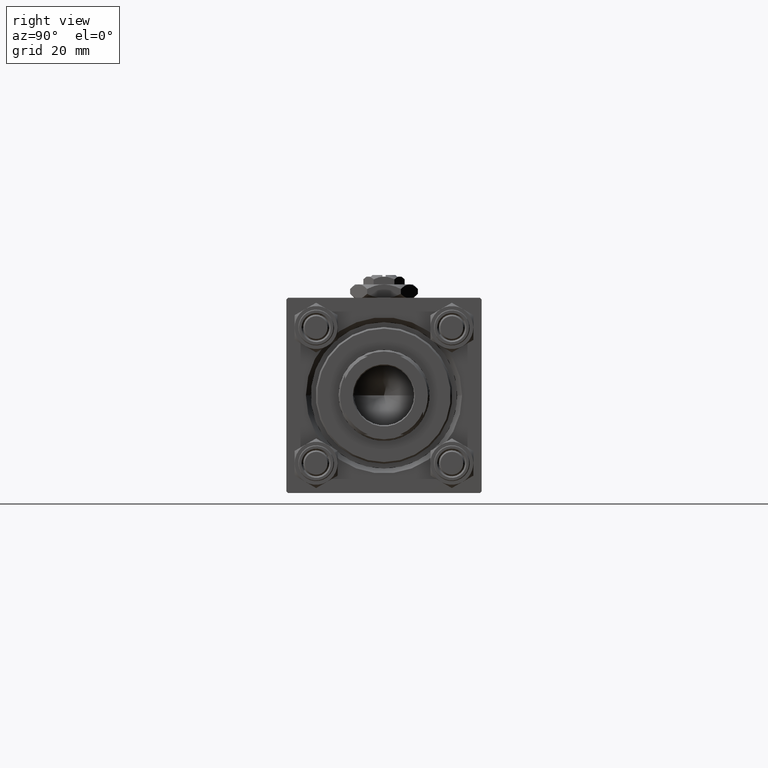
[diagram: clean part render]
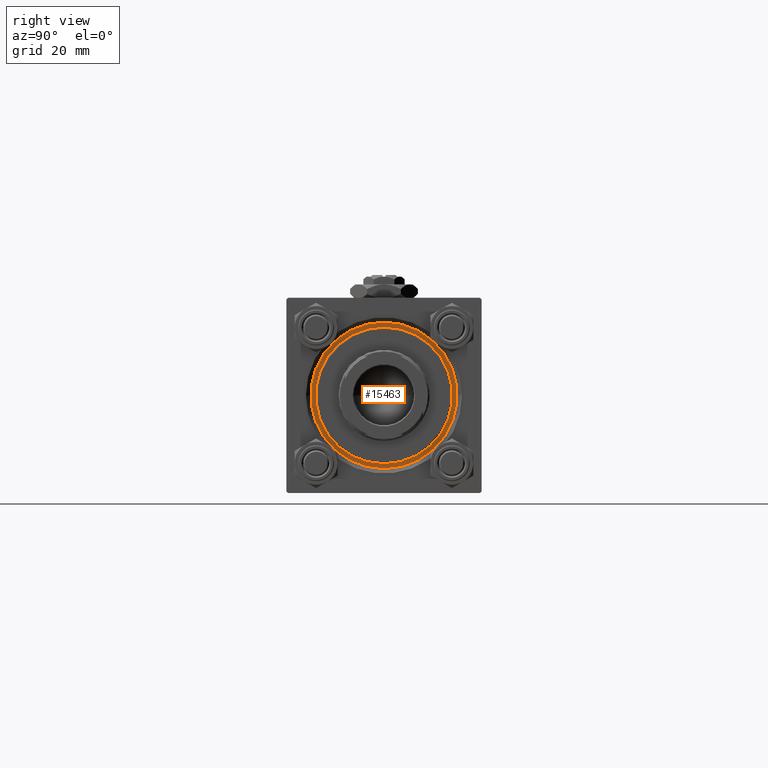
[diagram: same view with one face highlighted and labeled with its STEP entity id]
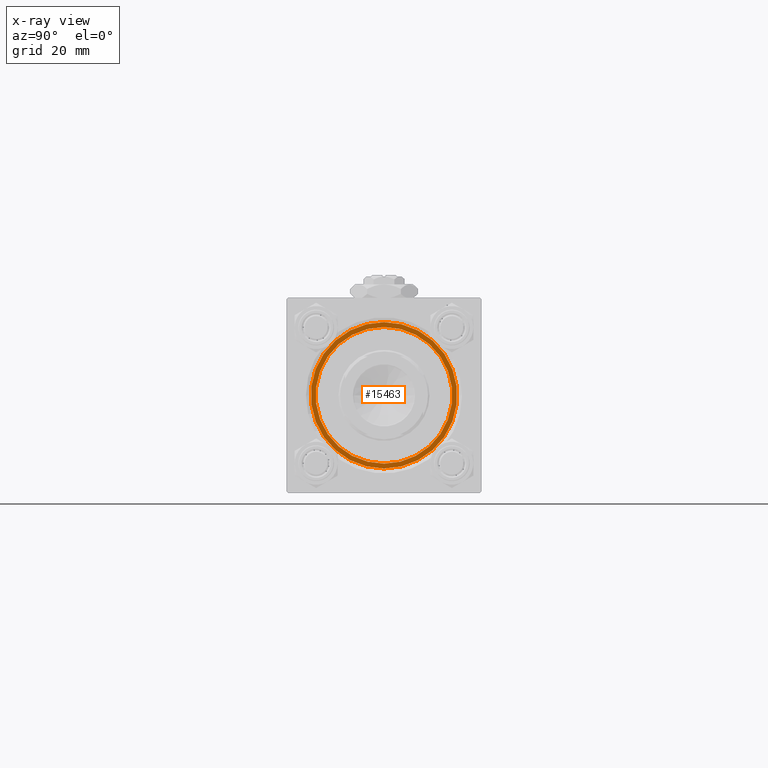
[diagram: x-ray of the same camera — body ghosted, the highlighted face saturated]
A machine part, right view. The second image highlights one B-rep face of the part: STEP entity #15463.
The next image is the same camera in x-ray: the body ghosted, the highlighted face saturated — about 0% of this face is hidden behind the body in this view.
In plain terms, the highlighted planar face has unit normal (1, 0, 0).
Its self-contained STEP definition (entity closure, byte-faithful):
#444 = FACE_BOUND ( 'NONE', #23525, .T. ) ;
#844 = CARTESIAN_POINT ( 'NONE',  ( 22.50000000000000355, 2.755455298081545172E-15, 28.69999999999999929 ) ) ;
#903 = FACE_OUTER_BOUND ( 'NONE', #15886, .T. ) ;
#1141 = CIRCLE ( 'NONE', #40472, 21.00000000000000000 ) ;
#2580 = DIRECTION ( 'NONE',  ( 1.000000000000000000, 0.000000000000000000, 0.000000000000000000 ) ) ;
#5070 = DIRECTION ( 'NONE',  ( 0.000000000000000000, 0.000000000000000000, 1.000000000000000000 ) ) ;
#7272 = ORIENTED_EDGE ( 'NONE', *, *, #7732, .T. ) ;
#7732 = EDGE_CURVE ( 'NONE', #21997, #15813, #41942, .T. ) ;
#9023 = DIRECTION ( 'NONE',  ( 1.000000000000000000, 0.000000000000000000, 0.000000000000000000 ) ) ;
#10539 = AXIS2_PLACEMENT_3D ( 'NONE', #16262, #40749, #9023 ) ;
#13462 = CARTESIAN_POINT ( 'NONE',  ( 0.000000000000000000, 0.000000000000000000, 28.69999999999999929 ) ) ;
#15463 = ADVANCED_FACE ( 'NONE', ( #444, #903 ), #41500, .T. ) ;
#15651 = DIRECTION ( 'NONE',  ( 1.000000000000000000, 0.000000000000000000, -0.000000000000000000 ) ) ;
#15813 = VERTEX_POINT ( 'NONE', #844 ) ;
#15886 = EDGE_LOOP ( 'NONE', ( #7272, #21592 ) ) ;
#15951 = DIRECTION ( 'NONE',  ( 1.000000000000000000, 0.000000000000000000, 0.000000000000000000 ) ) ;
#16262 = CARTESIAN_POINT ( 'NONE',  ( 0.000000000000000000, 0.000000000000000000, 28.69999999999999929 ) ) ;
#18779 = DIRECTION ( 'NONE',  ( 0.000000000000000000, 0.000000000000000000, 1.000000000000000000 ) ) ;
#19901 = EDGE_CURVE ( 'NONE', #43275, #37388, #41411, .T. ) ;
#21592 = ORIENTED_EDGE ( 'NONE', *, *, #29172, .T. ) ;
#21997 = VERTEX_POINT ( 'NONE', #25740 ) ;
#23525 = EDGE_LOOP ( 'NONE', ( #38276, #36783 ) ) ;
#23977 = CARTESIAN_POINT ( 'NONE',  ( 21.00000000000000000, 2.571758278209441661E-15, 28.69999999999999929 ) ) ;
#24050 = CARTESIAN_POINT ( 'NONE',  ( -21.00000000000000000, 0.000000000000000000, 28.69999999999999929 ) ) ;
#25740 = CARTESIAN_POINT ( 'NONE',  ( -22.50000000000000355, 0.000000000000000000, 28.69999999999999929 ) ) ;
#29172 = EDGE_CURVE ( 'NONE', #15813, #21997, #34812, .T. ) ;
#31255 = AXIS2_PLACEMENT_3D ( 'NONE', #44654, #44184, #15651 ) ;
#33528 = DIRECTION ( 'NONE',  ( 1.000000000000000000, 0.000000000000000000, 0.000000000000000000 ) ) ;
#34325 = CARTESIAN_POINT ( 'NONE',  ( 0.000000000000000000, 0.000000000000000000, 28.69999999999999929 ) ) ;
#34812 = CIRCLE ( 'NONE', #44829, 22.50000000000000355 ) ;
#35702 = DIRECTION ( 'NONE',  ( 0.000000000000000000, 0.000000000000000000, 1.000000000000000000 ) ) ;
#36783 = ORIENTED_EDGE ( 'NONE', *, *, #45730, .F. ) ;
#37388 = VERTEX_POINT ( 'NONE', #23977 ) ;
#38276 = ORIENTED_EDGE ( 'NONE', *, *, #19901, .F. ) ;
#40385 = AXIS2_PLACEMENT_3D ( 'NONE', #40770, #18779, #33528 ) ;
#40472 = AXIS2_PLACEMENT_3D ( 'NONE', #34325, #5070, #15951 ) ;
#40749 = DIRECTION ( 'NONE',  ( 0.000000000000000000, 0.000000000000000000, 1.000000000000000000 ) ) ;
#40770 = CARTESIAN_POINT ( 'NONE',  ( 0.000000000000000000, 0.000000000000000000, 28.69999999999999929 ) ) ;
#41411 = CIRCLE ( 'NONE', #10539, 21.00000000000000000 ) ;
#41500 = PLANE ( 'NONE',  #31255 ) ;
#41942 = CIRCLE ( 'NONE', #40385, 22.50000000000000355 ) ;
#43275 = VERTEX_POINT ( 'NONE', #24050 ) ;
#44184 = DIRECTION ( 'NONE',  ( 0.000000000000000000, 0.000000000000000000, 1.000000000000000000 ) ) ;
#44654 = CARTESIAN_POINT ( 'NONE',  ( 0.000000000000000000, 0.000000000000000000, 28.69999999999999929 ) ) ;
#44829 = AXIS2_PLACEMENT_3D ( 'NONE', #13462, #35702, #2580 ) ;
#45730 = EDGE_CURVE ( 'NONE', #37388, #43275, #1141, .T. ) ;